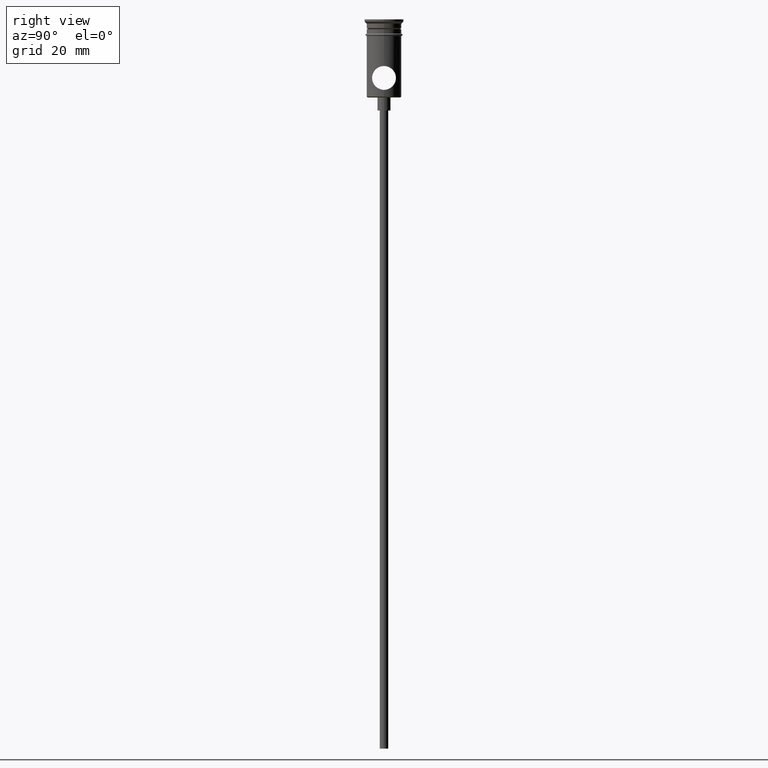
[diagram: clean part render]
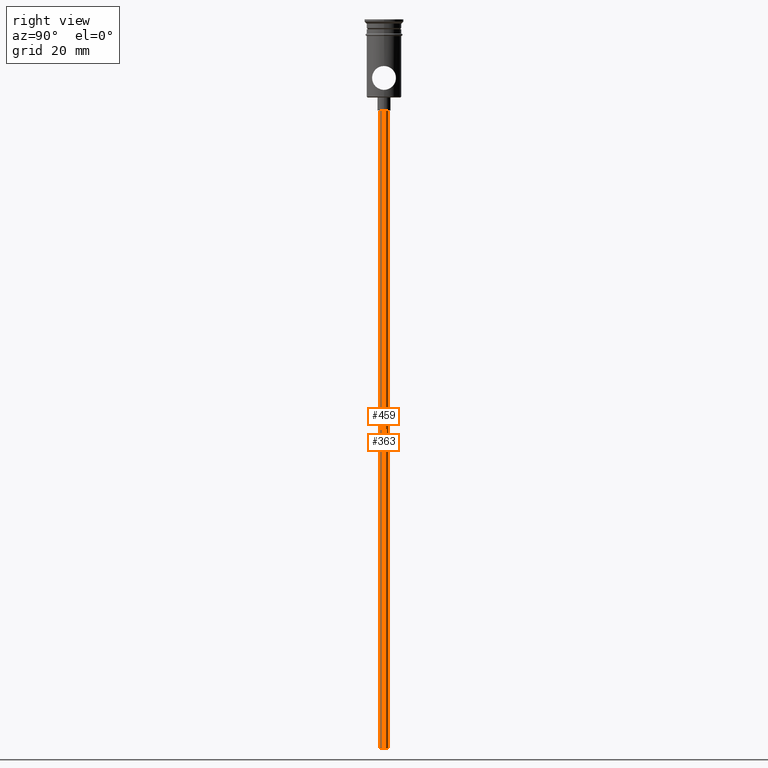
[diagram: same view with one multi-face feature highlighted, each face labeled with its STEP entity id]
A machine part, right view. The highlighted faces form ONE feature: a constant-radius fillet chain: 2 tangent blend faces with common blend radius 1 mm. The faces share edges in the B-rep.
Their STEP definitions:
[1] entity #459 (Cylinder):
#81 = DIRECTION ( 'NONE',  ( -0.000000000000000000, -0.000000000000000000, 1.000000000000000000 ) ) ;
#184 = EDGE_CURVE ( 'NONE', #552, #407, #221, .T. ) ;
#201 = CARTESIAN_POINT ( 'NONE',  ( -0.9999999999999997780, 1.224646799147352961E-16, -167.9999999999999716 ) ) ;
#209 = VECTOR ( 'NONE', #1197, 1000.000000000000000 ) ;
#221 = LINE ( 'NONE', #1310, #209 ) ;
#226 = DIRECTION ( 'NONE',  ( 0.000000000000000000, 0.000000000000000000, -1.000000000000000000 ) ) ;
#240 = DIRECTION ( 'NONE',  ( 0.000000000000000000, 0.000000000000000000, -1.000000000000000000 ) ) ;
#262 = EDGE_CURVE ( 'NONE', #1246, #1273, #711, .T. ) ;
#358 = EDGE_LOOP ( 'NONE', ( #384, #593, #1074, #1223 ) ) ;
#375 = CARTESIAN_POINT ( 'NONE',  ( 0.000000000000000000, 0.000000000000000000, -20.99999999999999645 ) ) ;
#384 = ORIENTED_EDGE ( 'NONE', *, *, #184, .F. ) ;
#407 = VERTEX_POINT ( 'NONE', #1049 ) ;
#459 = ADVANCED_FACE ( 'NONE', ( #919 ), #612, .T. ) ;
#552 = VERTEX_POINT ( 'NONE', #201 ) ;
#593 = ORIENTED_EDGE ( 'NONE', *, *, #726, .F. ) ;
#612 = CYLINDRICAL_SURFACE ( 'NONE', #757, 0.9999999999999997780 ) ;
#651 = CARTESIAN_POINT ( 'NONE',  ( 0.9999999999999997780, 0.000000000000000000, -167.9999999999999716 ) ) ;
#711 = LINE ( 'NONE', #1062, #1063 ) ;
#714 = AXIS2_PLACEMENT_3D ( 'NONE', #375, #240, #812 ) ;
#726 = EDGE_CURVE ( 'NONE', #1246, #552, #951, .T. ) ;
#757 = AXIS2_PLACEMENT_3D ( 'NONE', #839, #945, #1041 ) ;
#791 = DIRECTION ( 'NONE',  ( -1.000000000000000000, 0.000000000000000000, 0.000000000000000000 ) ) ;
#794 = CARTESIAN_POINT ( 'NONE',  ( 0.9999999999999997780, 0.000000000000000000, -20.99999999999999645 ) ) ;
#812 = DIRECTION ( 'NONE',  ( -1.000000000000000000, 0.000000000000000000, 0.000000000000000000 ) ) ;
#839 = CARTESIAN_POINT ( 'NONE',  ( 0.000000000000000000, 0.000000000000000000, -167.9999999999999716 ) ) ;
#919 = FACE_OUTER_BOUND ( 'NONE', #358, .T. ) ;
#945 = DIRECTION ( 'NONE',  ( -0.000000000000000000, -0.000000000000000000, 1.000000000000000000 ) ) ;
#951 = CIRCLE ( 'NONE', #1193, 0.9999999999999997780 ) ;
#993 = EDGE_CURVE ( 'NONE', #1273, #407, #1342, .T. ) ;
#1041 = DIRECTION ( 'NONE',  ( 1.000000000000000000, 0.000000000000000000, 0.000000000000000000 ) ) ;
#1049 = CARTESIAN_POINT ( 'NONE',  ( -0.9999999999999997780, 1.224646799147352961E-16, -20.99999999999999645 ) ) ;
#1062 = CARTESIAN_POINT ( 'NONE',  ( 0.9999999999999997780, 0.000000000000000000, -167.9999999999999716 ) ) ;
#1063 = VECTOR ( 'NONE', #81, 1000.000000000000000 ) ;
#1074 = ORIENTED_EDGE ( 'NONE', *, *, #262, .T. ) ;
#1193 = AXIS2_PLACEMENT_3D ( 'NONE', #1214, #226, #791 ) ;
#1197 = DIRECTION ( 'NONE',  ( -0.000000000000000000, -0.000000000000000000, 1.000000000000000000 ) ) ;
#1214 = CARTESIAN_POINT ( 'NONE',  ( 0.000000000000000000, 0.000000000000000000, -167.9999999999999716 ) ) ;
#1223 = ORIENTED_EDGE ( 'NONE', *, *, #993, .T. ) ;
#1246 = VERTEX_POINT ( 'NONE', #651 ) ;
#1273 = VERTEX_POINT ( 'NONE', #794 ) ;
#1310 = CARTESIAN_POINT ( 'NONE',  ( -0.9999999999999997780, 1.224646799147352961E-16, -167.9999999999999716 ) ) ;
#1342 = CIRCLE ( 'NONE', #714, 0.9999999999999997780 ) ;
[2] entity #363 (Cylinder):
#78 = AXIS2_PLACEMENT_3D ( 'NONE', #703, #1361, #1380 ) ;
#81 = DIRECTION ( 'NONE',  ( -0.000000000000000000, -0.000000000000000000, 1.000000000000000000 ) ) ;
#149 = DIRECTION ( 'NONE',  ( 1.000000000000000000, 0.000000000000000000, 0.000000000000000000 ) ) ;
#184 = EDGE_CURVE ( 'NONE', #552, #407, #221, .T. ) ;
#201 = CARTESIAN_POINT ( 'NONE',  ( -0.9999999999999997780, 1.224646799147352961E-16, -167.9999999999999716 ) ) ;
#209 = VECTOR ( 'NONE', #1197, 1000.000000000000000 ) ;
#221 = LINE ( 'NONE', #1310, #209 ) ;
#262 = EDGE_CURVE ( 'NONE', #1246, #1273, #711, .T. ) ;
#274 = CARTESIAN_POINT ( 'NONE',  ( 0.000000000000000000, 0.000000000000000000, -20.99999999999999645 ) ) ;
#363 = ADVANCED_FACE ( 'NONE', ( #768 ), #913, .T. ) ;
#407 = VERTEX_POINT ( 'NONE', #1049 ) ;
#439 = AXIS2_PLACEMENT_3D ( 'NONE', #274, #1369, #485 ) ;
#463 = EDGE_CURVE ( 'NONE', #552, #1246, #1103, .T. ) ;
#485 = DIRECTION ( 'NONE',  ( -1.000000000000000000, 0.000000000000000000, 0.000000000000000000 ) ) ;
#514 = AXIS2_PLACEMENT_3D ( 'NONE', #1117, #1205, #149 ) ;
#552 = VERTEX_POINT ( 'NONE', #201 ) ;
#587 = ORIENTED_EDGE ( 'NONE', *, *, #463, .F. ) ;
#651 = CARTESIAN_POINT ( 'NONE',  ( 0.9999999999999997780, 0.000000000000000000, -167.9999999999999716 ) ) ;
#669 = ORIENTED_EDGE ( 'NONE', *, *, #850, .T. ) ;
#703 = CARTESIAN_POINT ( 'NONE',  ( 0.000000000000000000, 0.000000000000000000, -167.9999999999999716 ) ) ;
#711 = LINE ( 'NONE', #1062, #1063 ) ;
#768 = FACE_OUTER_BOUND ( 'NONE', #1234, .T. ) ;
#794 = CARTESIAN_POINT ( 'NONE',  ( 0.9999999999999997780, 0.000000000000000000, -20.99999999999999645 ) ) ;
#850 = EDGE_CURVE ( 'NONE', #407, #1273, #1360, .T. ) ;
#864 = ORIENTED_EDGE ( 'NONE', *, *, #184, .T. ) ;
#913 = CYLINDRICAL_SURFACE ( 'NONE', #514, 0.9999999999999997780 ) ;
#1034 = ORIENTED_EDGE ( 'NONE', *, *, #262, .F. ) ;
#1049 = CARTESIAN_POINT ( 'NONE',  ( -0.9999999999999997780, 1.224646799147352961E-16, -20.99999999999999645 ) ) ;
#1062 = CARTESIAN_POINT ( 'NONE',  ( 0.9999999999999997780, 0.000000000000000000, -167.9999999999999716 ) ) ;
#1063 = VECTOR ( 'NONE', #81, 1000.000000000000000 ) ;
#1103 = CIRCLE ( 'NONE', #78, 0.9999999999999997780 ) ;
#1117 = CARTESIAN_POINT ( 'NONE',  ( 0.000000000000000000, 0.000000000000000000, -167.9999999999999716 ) ) ;
#1197 = DIRECTION ( 'NONE',  ( -0.000000000000000000, -0.000000000000000000, 1.000000000000000000 ) ) ;
#1205 = DIRECTION ( 'NONE',  ( -0.000000000000000000, -0.000000000000000000, 1.000000000000000000 ) ) ;
#1234 = EDGE_LOOP ( 'NONE', ( #587, #864, #669, #1034 ) ) ;
#1246 = VERTEX_POINT ( 'NONE', #651 ) ;
#1273 = VERTEX_POINT ( 'NONE', #794 ) ;
#1310 = CARTESIAN_POINT ( 'NONE',  ( -0.9999999999999997780, 1.224646799147352961E-16, -167.9999999999999716 ) ) ;
#1360 = CIRCLE ( 'NONE', #439, 0.9999999999999997780 ) ;
#1361 = DIRECTION ( 'NONE',  ( 0.000000000000000000, 0.000000000000000000, -1.000000000000000000 ) ) ;
#1369 = DIRECTION ( 'NONE',  ( 0.000000000000000000, 0.000000000000000000, -1.000000000000000000 ) ) ;
#1380 = DIRECTION ( 'NONE',  ( -1.000000000000000000, 0.000000000000000000, 0.000000000000000000 ) ) ;